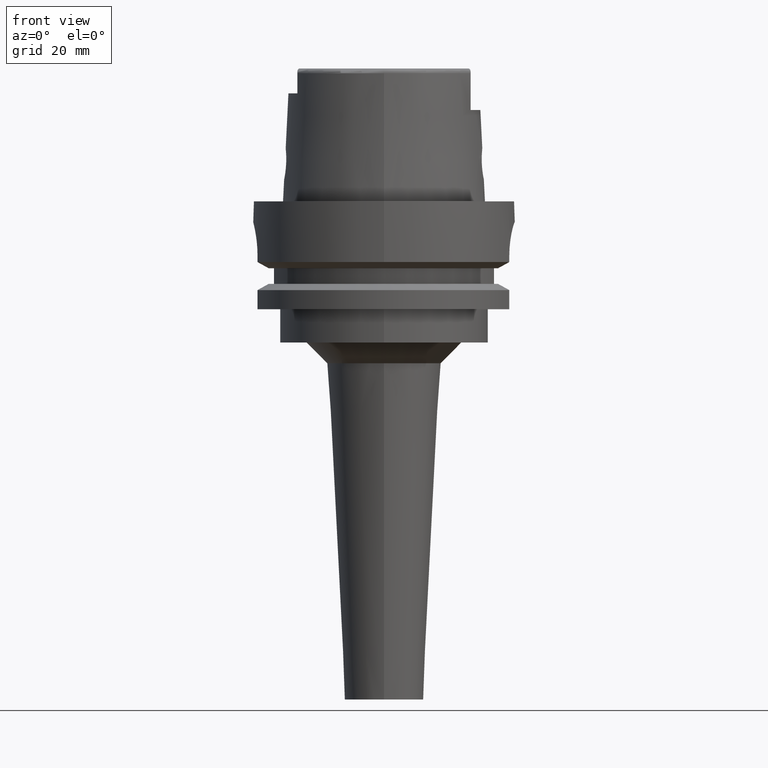
[diagram: clean part render]
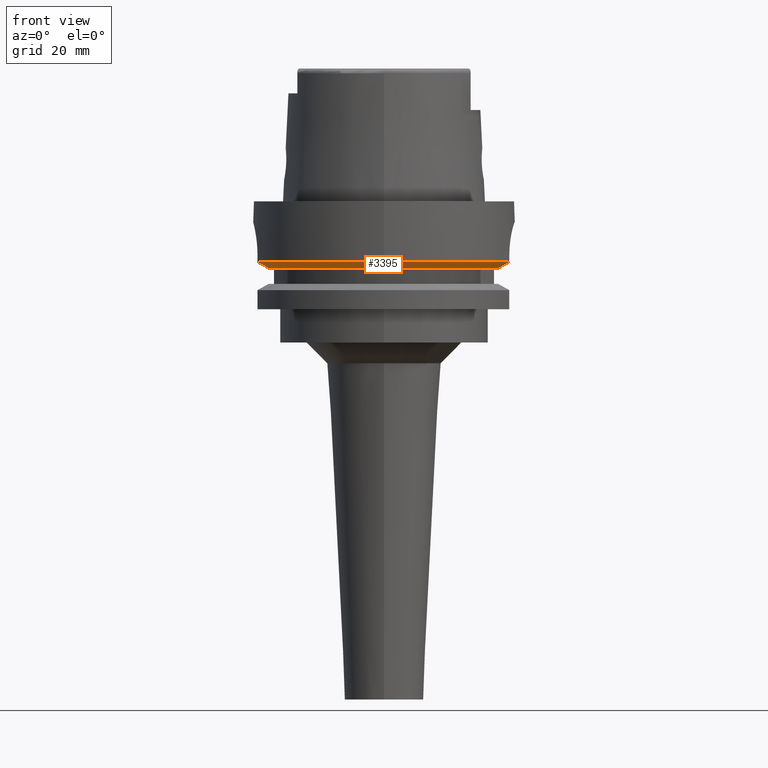
[diagram: same view with one face highlighted and labeled with its STEP entity id]
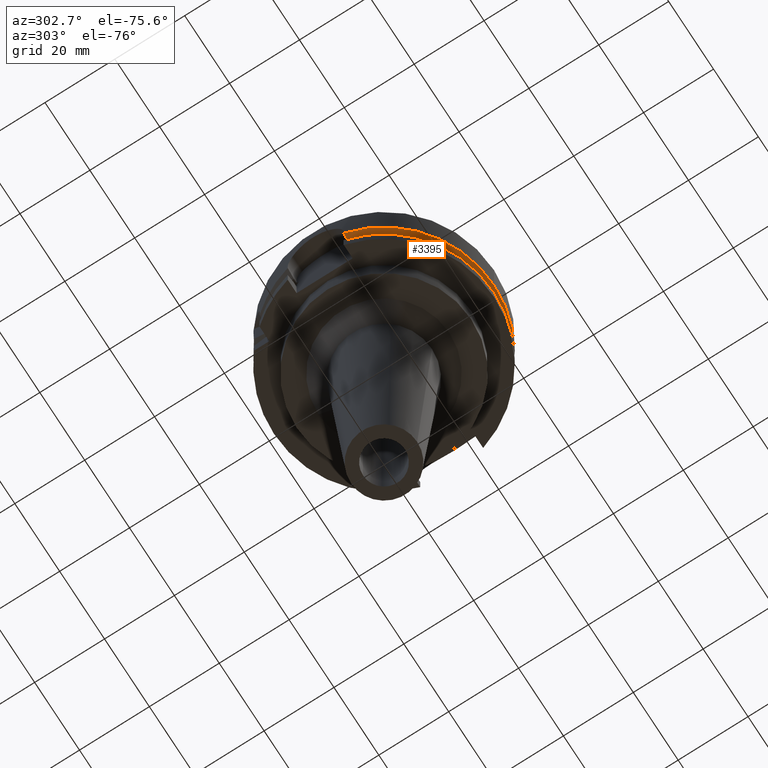
[diagram: same view with one face highlighted and labeled with its STEP entity id]
A machine part, front view. The second image highlights one B-rep face of the part: STEP entity #3395.
A second angle (auxiliary view) of the same face is appended — the face is thin or edge-on in the first view.
In plain terms, the highlighted conical surface has half-angle 60 deg.
Its self-contained STEP definition (entity closure, byte-faithful):
#894=CARTESIAN_POINT('',(0.E0,0.E0,-1.6125E1));
#895=DIRECTION('',(0.E0,0.E0,1.E0));
#896=DIRECTION('',(-9.609161312155E-1,-2.768396445054E-1,0.E0));
#897=AXIS2_PLACEMENT_3D('',#894,#895,#896);
#902=CARTESIAN_POINT('',(0.E0,0.E0,-1.6125E1));
#903=DIRECTION('',(0.E0,0.E0,1.E0));
#904=DIRECTION('',(0.E0,-1.E0,0.E0));
#905=AXIS2_PLACEMENT_3D('',#902,#903,#904);
#1295=CARTESIAN_POINT('',(-2.776816318420E1,-8.000000147255E0,-1.6125E1));
#1296=CARTESIAN_POINT('',(-2.806142545240E1,-8.000000147255E0,
-1.596230243844E1));
#1297=CARTESIAN_POINT('',(-2.865235905608E1,-7.999999994496E0,
-1.563406760346E1));
#1298=CARTESIAN_POINT('',(-2.955202814443E1,-7.999999798380E0,
-1.513321822599E1));
#1299=CARTESIAN_POINT('',(-3.016065819136E1,-8.000000474115E0,
-1.479367323001E1));
#1300=CARTESIAN_POINT('',(-3.046719534867E1,-8.000000474115E0,
-1.462249662128E1));
#1305=CARTESIAN_POINT('',(0.E0,0.E0,-1.462250092524E1));
#1306=DIRECTION('',(0.E0,0.E0,1.E0));
#1307=DIRECTION('',(-9.672125547036E-1,-2.539682539683E-1,0.E0));
#1308=AXIS2_PLACEMENT_3D('',#1305,#1306,#1307);
#1313=CARTESIAN_POINT('',(0.E0,0.E0,-1.462250092524E1));
#1314=DIRECTION('',(0.E0,0.E0,1.E0));
#1315=DIRECTION('',(0.E0,-1.E0,0.E0));
#1316=AXIS2_PLACEMENT_3D('',#1313,#1314,#1315);
#1321=CARTESIAN_POINT('',(3.018691773962E1,-8.999999854527E0,
-1.462250209851E1));
#1322=CARTESIAN_POINT('',(2.987664935853E1,-8.999999854527E0,
-1.479416842394E1));
#1323=CARTESIAN_POINT('',(2.926099550922E1,-8.999999970876E0,
-1.513436667924E1));
#1324=CARTESIAN_POINT('',(2.835215258513E1,-9.000000320145E0,
-1.563521632048E1));
#1325=CARTESIAN_POINT('',(2.775599737909E1,-8.999999272412E0,
-1.596280481965E1));
#1326=CARTESIAN_POINT('',(2.746036354071E1,-8.999999272412E0,-1.6125E1));
#2446=CARTESIAN_POINT('',(-2.776816318420E1,-8.000000147255E0,-1.6125E1));
#2448=VERTEX_POINT('',#2446);
#2453=CARTESIAN_POINT('',(-3.046719534867E1,-8.000000474115E0,
-1.462249662128E1));
#2454=VERTEX_POINT('',#2453);
#2517=CARTESIAN_POINT('',(2.746036354071E1,-8.999999272412E0,-1.6125E1));
#2518=VERTEX_POINT('',#2517);
#2519=VERTEX_POINT('',#1321);
#2522=CARTESIAN_POINT('',(3.387246720806E-14,-2.889759526419E1,-1.6125E1));
#2523=VERTEX_POINT('',#2522);
#2530=CARTESIAN_POINT('',(0.E0,-3.15E1,-1.462250092524E1));
#2531=VERTEX_POINT('',#2530);
#3381=CARTESIAN_POINT('',(0.E0,0.E0,-1.537375046262E1));
#3382=DIRECTION('',(0.E0,0.E0,1.E0));
#3383=DIRECTION('',(0.E0,1.E0,0.E0));
#3384=AXIS2_PLACEMENT_3D('',#3381,#3382,#3383);
#3385=CONICAL_SURFACE('',#3384,3.019879763210E1,6.E1);
#3386=ORIENTED_EDGE('',*,*,#3092,.T.);
#3387=ORIENTED_EDGE('',*,*,#2948,.T.);
#3389=ORIENTED_EDGE('',*,*,#3388,.T.);
#3390=ORIENTED_EDGE('',*,*,#3371,.T.);
#3391=ORIENTED_EDGE('',*,*,#3107,.F.);
#3392=ORIENTED_EDGE('',*,*,#3105,.F.);
#3393=EDGE_LOOP('',(#3386,#3387,#3389,#3390,#3391,#3392));
#3394=FACE_OUTER_BOUND('',#3393,.F.);
#898=CIRCLE('',#897,2.889759526419E1);
#906=CIRCLE('',#905,2.889759526419E1);
#1301=B_SPLINE_CURVE_WITH_KNOTS('',3,(#1295,#1296,#1297,#1298,#1299,#1300),
.UNSPECIFIED.,.F.,.F.,(4,1,1,4),(0.E0,3.333333333333E-1,6.666666666667E-1,1.E0),
.UNSPECIFIED.);
#1309=CIRCLE('',#1308,3.15E1);
#1317=CIRCLE('',#1316,3.15E1);
#1327=B_SPLINE_CURVE_WITH_KNOTS('',3,(#1321,#1322,#1323,#1324,#1325,#1326),
.UNSPECIFIED.,.F.,.F.,(4,1,1,4),(0.E0,3.333333333333E-1,6.666666666667E-1,1.E0),
.UNSPECIFIED.);
#2948=EDGE_CURVE('',#2454,#2531,#1309,.T.);
#3092=EDGE_CURVE('',#2448,#2454,#1301,.T.);
#3105=EDGE_CURVE('',#2448,#2523,#898,.T.);
#3107=EDGE_CURVE('',#2523,#2518,#906,.T.);
#3371=EDGE_CURVE('',#2519,#2518,#1327,.T.);
#3388=EDGE_CURVE('',#2531,#2519,#1317,.T.);
#3395=ADVANCED_FACE('',(#3394),#3385,.T.);